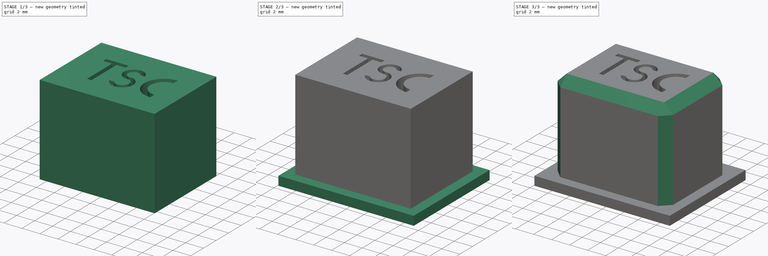
[diagram: build sequence overview — one tinted view per stage of 3, left to right]
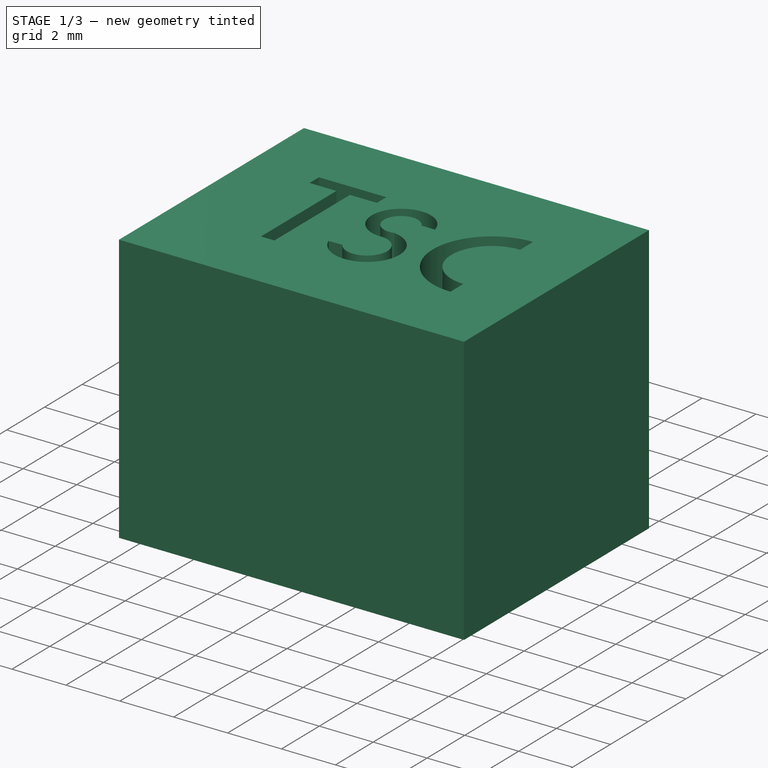
[diagram: stage 1 of 3 — iso view after this stage's code; geometry added in this stage tinted green]
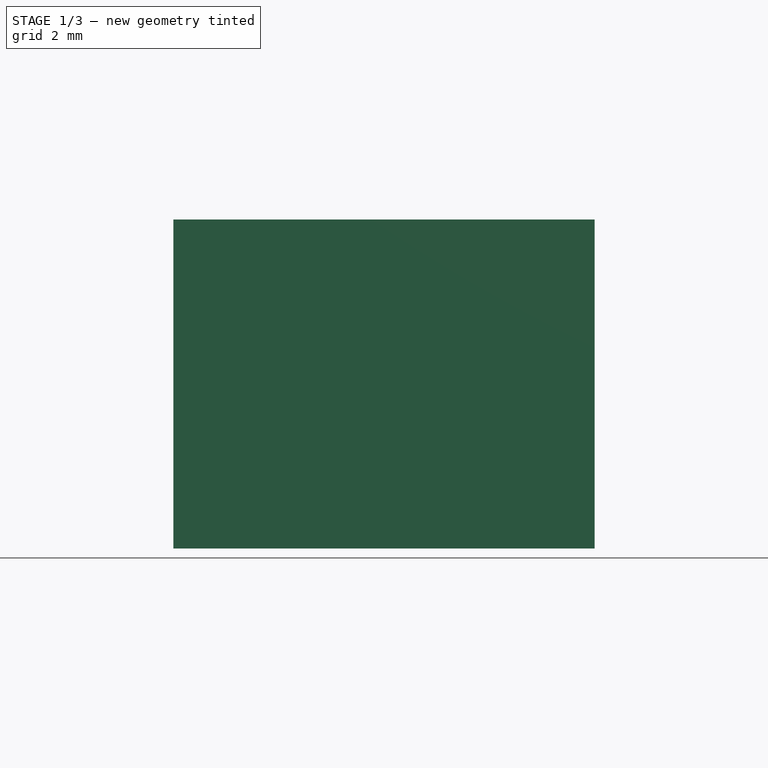
[diagram: stage 1 of 3 — front view after this stage's code; geometry added in this stage tinted green]
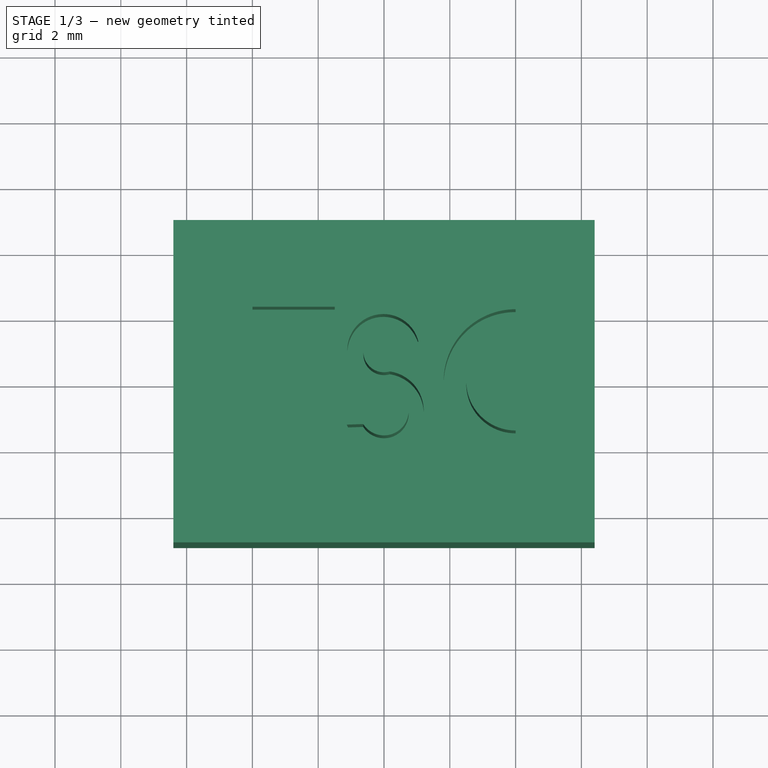
[diagram: stage 1 of 3 — top view after this stage's code; geometry added in this stage tinted green]
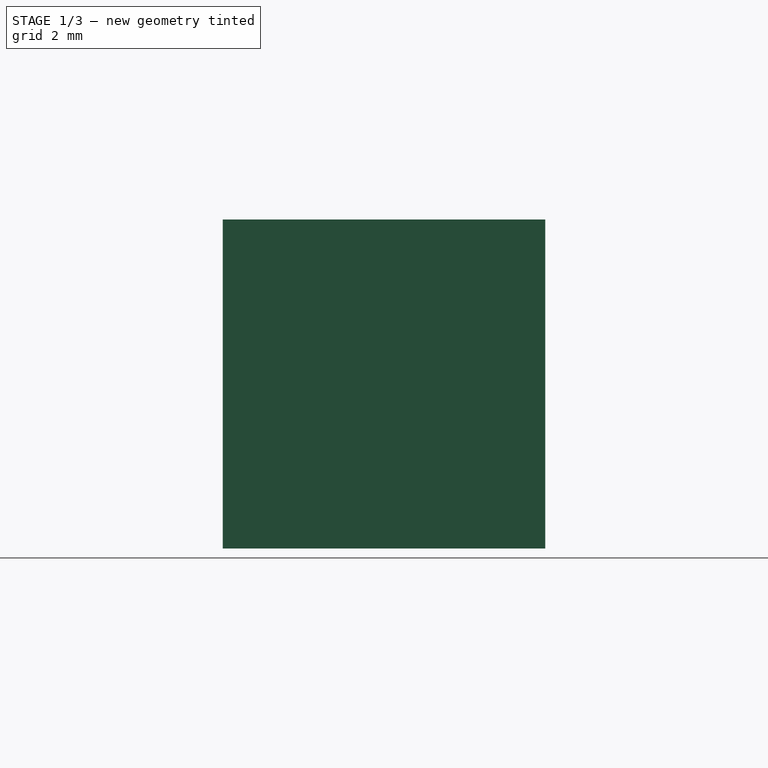
[diagram: stage 1 of 3 — right view after this stage's code; geometry added in this stage tinted green]
FCSTD DOCUMENT  (FreeCAD 0.21R33771 (Git))
Label: bezel-3-button-iteration-TSc
License: All rights reserved
LicenseURL: http://en.wikipedia.org/wiki/All_rights_reserved
objects: Sketcher::SketchObject×4, PartDesign::Pad×2, PartDesign::Pocket×2, PartDesign::Chamfer×1, PartDesign::Body×1, App::Part×1
note: 15 computed .brp shape members not serialized (recipe doc carries the construction recipe); baked Part::Feature solids carry a one-line shape summary decoded from their .brp

FEATURE [Sketcher::SketchObject] Sketch
  FullyConstrained = true
  MapMode = 5
  Support = -> [XY_Plane001]
  sketch-geometry (4):
    g0: LineSegment StartX=-6.4 StartY=4.9 StartZ=0 EndX=6.4 EndY=4.9 EndZ=0
    g1: LineSegment StartX=6.4 StartY=4.9 StartZ=0 EndX=6.4 EndY=-4.9 EndZ=0
    g2: LineSegment StartX=6.4 StartY=-4.9 StartZ=0 EndX=-6.4 EndY=-4.9 EndZ=0
    g3: LineSegment StartX=-6.4 StartY=-4.9 StartZ=0 EndX=-6.4 EndY=4.9 EndZ=0
  constraints (11):
    c: Coincident(g0,g1)
    c: Coincident(g1,g2)
    c: Coincident(g2,g3)
    c: Coincident(g3,g0)
    c: Horizontal(g0)
    c: Horizontal(g2)
    c: Vertical(g1)
    c: Vertical(g3)
    c: DistanceX(g2,g2) = 12.8
    c: DistanceY(g1,g1) = 9.8
    c: Symmetric(g1,g0,g-1)
FEATURE [PartDesign::Pad] Pad
  Direction = (0,0,1)
  Length = 10
  Length2 = 10
  Profile = -> Sketch
  ReferenceAxis = -> Sketch [N_Axis]
  Type = 0
FEATURE [Sketcher::SketchObject] Sketch001
  FullyConstrained = false
  MapMode = 5
  Placement = pos=(0,0,10) rot=(0,0,1;0rad)
  Support = -> [Pad]
  sketch-geometry (26):
    g0: LineSegment StartX=0 StartY=0 StartZ=0 EndX=-4 EndY=0 EndZ=0
    g1: LineSegment StartX=-4 StartY=0 StartZ=0 EndX=-4 EndY=3 EndZ=0
    g2: LineSegment StartX=-4 StartY=3 StartZ=0 EndX=0 EndY=3 EndZ=0
    g3: LineSegment StartX=0 StartY=3 StartZ=0 EndX=0 EndY=0 EndZ=0
    g4: LineSegment StartX=0 StartY=0 StartZ=0 EndX=4 EndY=0 EndZ=0
    g5: LineSegment StartX=4 StartY=0 StartZ=0 EndX=4 EndY=-3 EndZ=0
    g6: LineSegment StartX=4 StartY=-3 StartZ=0 EndX=0 EndY=-3 EndZ=0
    g7: LineSegment StartX=0 StartY=-3 StartZ=0 EndX=0 EndY=0 EndZ=0
    g8: LineSegment StartX=-3.99861 StartY=2.2628 StartZ=0 EndX=-3.99861 EndY=1.7628 EndZ=0
    g9: LineSegment StartX=-3.99861 StartY=1.7628 StartZ=0 EndX=-2.99861 EndY=1.7628 EndZ=0
    g10: LineSegment StartX=-2.99861 StartY=1.7628 StartZ=0 EndX=-2.99861 EndY=-2.2372 EndZ=0
    g11: LineSegment StartX=-2.99861 StartY=-2.2372 StartZ=0 EndX=-2.49861 EndY=-2.2372 EndZ=0
    g12: LineSegment StartX=-2.49861 StartY=-2.2372 StartZ=0 EndX=-2.49861 EndY=1.7628 EndZ=0
    g13: LineSegment StartX=-2.49861 StartY=1.7628 StartZ=0 EndX=-1.49861 EndY=1.7628 EndZ=0
    g14: LineSegment StartX=-1.49861 StartY=1.7628 StartZ=0 EndX=-1.49861 EndY=2.2628 EndZ=0
    g15: LineSegment StartX=-1.49861 StartY=2.2628 StartZ=0 EndX=-3.99861 EndY=2.2628 EndZ=0
    g16: ArcOfCircle CenterX=-0.018047 CenterY=0.944138 CenterZ=0 NormalX=0 NormalY=0 NormalZ=1 AngleXU=0 Radius=1.09523 StartAngle=0.233181 EndAngle=4.68296
    g17: ArcOfCircle CenterX=0 CenterY=-0.898928 CenterZ=0 NormalX=0 NormalY=0 NormalZ=1 AngleXU=0 Radius=0.75 StartAngle=3.7141 EndAngle=7.92106
    g18: ArcOfCircle CenterX=0 CenterY=-0.898928 CenterZ=0 NormalX=0 NormalY=0 NormalZ=1 AngleXU=0 Radius=1.20712 StartAngle=3.50002 EndAngle=7.70775
    g19: ArcOfCircle CenterX=0 CenterY=0.897035 CenterZ=0 NormalX=0 NormalY=0 NormalZ=1 AngleXU=0 Radius=0.62691 StartAngle=0.508669 EndAngle=4.99678
    g20: LineSegment StartX=0.547539 StartY=1.20235 StartZ=0 EndX=1.04754 EndY=1.19722 EndZ=0
    g21: LineSegment StartX=-1.13041 StartY=-1.32239 StartZ=0 EndX=-0.630407 EndY=-1.30524 EndZ=0
    g22: ArcOfCircle CenterX=4 CenterY=0 CenterZ=0 NormalX=0 NormalY=0 NormalZ=1 AngleXU=0 Radius=2.18602 StartAngle=1.5708 EndAngle=4.71239
    g23: ArcOfCircle CenterX=4 CenterY=0 CenterZ=0 NormalX=0 NormalY=0 NormalZ=1 AngleXU=0 Radius=1.5 StartAngle=1.5708 EndAngle=4.71239
    g24: LineSegment StartX=4 StartY=2.18602 StartZ=0 EndX=4 EndY=1.5 EndZ=0
    g25: LineSegment StartX=4 StartY=-1.5 StartZ=0 EndX=4 EndY=-2.18602 EndZ=0
  constraints (66):
    c: Coincident(g0,g1)
    c: Coincident(g1,g2)
    c: Coincident(g2,g3)
    c: Coincident(g3,g0)
    c: Horizontal(g0)
    c: Horizontal(g2)
    c: Vertical(g1)
    c: Vertical(g3)
    c: Coincident(g0,g-1)
    c: Coincident(g4,g5)
    c: Coincident(g5,g6)
    c: Coincident(g6,g7)
    c: Coincident(g7,g4)
    c: Horizontal(g4)
    c: Horizontal(g6)
    c: Vertical(g5)
    c: Vertical(g7)
    c: Coincident(g4,g0)
    c: DistanceX(g6,g6) = 4
    c: DistanceX(g2,g2) = 4
    c: DistanceY(g1,g1) = 3
    c: DistanceY(g5,g5) = 3
    c: Vertical(g8)
    c: Coincident(g8,g9)
    c: Horizontal(g9)
    c: Coincident(g9,g10)
    c: Vertical(g10)
    c: Coincident(g10,g11)
    c: Horizontal(g11)
    c: Coincident(g11,g12)
    c: Vertical(g12)
    c: Coincident(g12,g13)
    c: Horizontal(g13)
    c: Coincident(g13,g14)
    c: Coincident(g14,g15)
    c: Coincident(g15,g8)
    c: Horizontal(g15)
    c: DistanceY(g14,g14) = 0.5
    c: Vertical(g14)
    c: DistanceY(g8,g8) = 0.5
    c: DistanceX(g9,g9) = 1
    c: DistanceX(g13,g13) = 1
    c: DistanceX(g11,g11) = 0.5
    c: DistanceY(g12,g12) = 4
    c: PointOnObject(g17,g7)
    c: Coincident(g17,g16)
    c: Coincident(g18,g17)
    c: PointOnObject(g19,g3)
    c: Coincident(g19,g18)
    c: Coincident(g20,g19)
    c: Coincident(g20,g16)
    c: DistanceX(g20,g20) = 0.5
    c: Coincident(g21,g18)
    c: Coincident(g21,g17)
    c: DistanceX(g21,g21) = 0.5
    c: Distance(g16,g18) = 0.5
    c: Distance(g17,g17) = 0.75
    c: Coincident(g22,g4)
    c: PointOnObject(g22,g5)
    c: Coincident(g23,g22)
    c: PointOnObject(g23,g5)
    c: Coincident(g24,g22)
    c: Coincident(g24,g23)
    c: Vertical(g24)
    c: Coincident(g25,g23)
    c: Coincident(g25,g22)
FEATURE [PartDesign::Pocket] Pocket
  BaseFeature = -> Pad
  Direction = (0,0,-1)
  Length = 5
  Length2 = 5
  Profile = -> Sketch001
  ReferenceAxis = -> Sketch001 [N_Axis]
  Type = 0
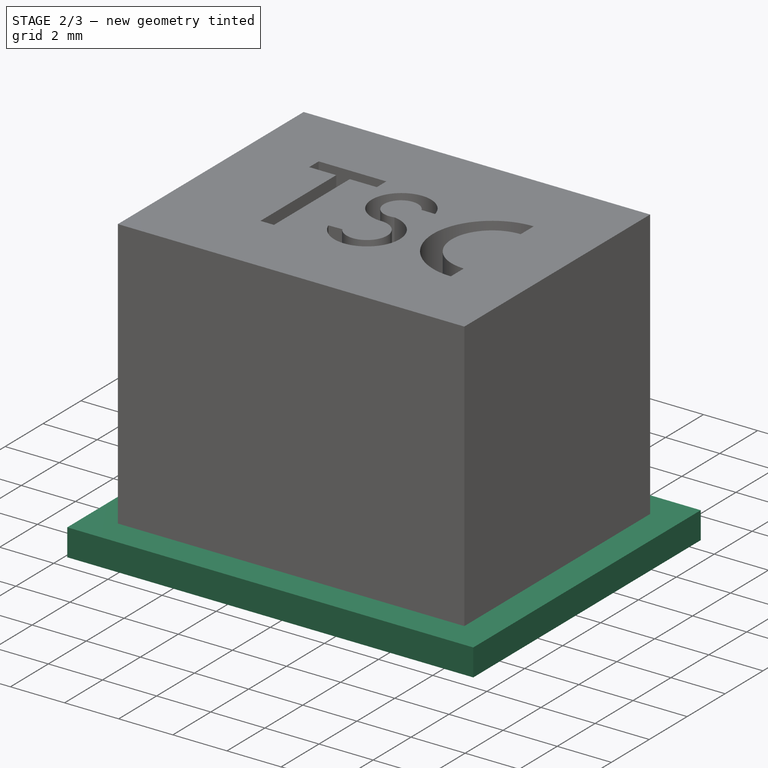
[diagram: stage 2 of 3 — iso view after this stage's code; geometry added in this stage tinted green]
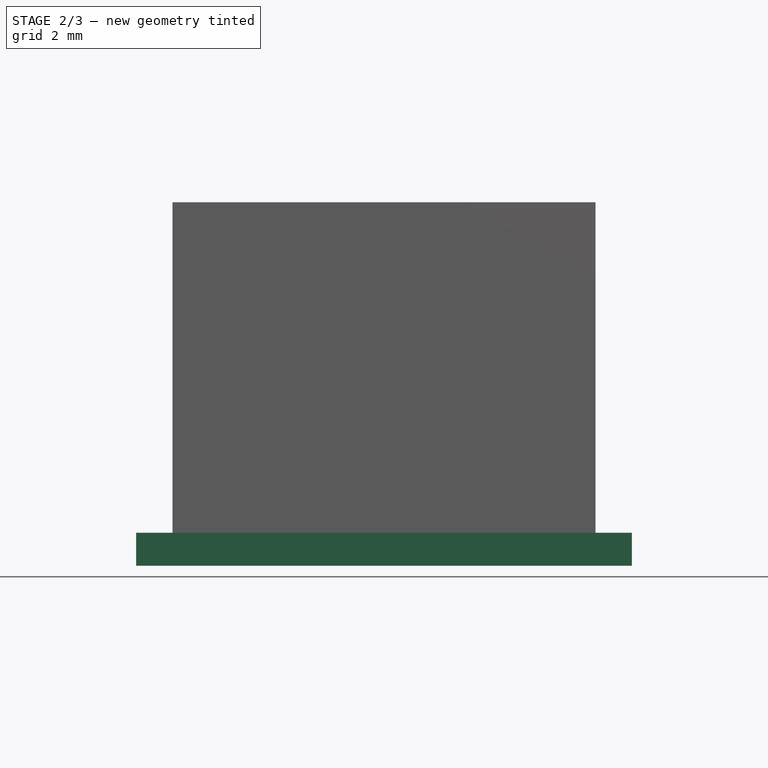
[diagram: stage 2 of 3 — front view after this stage's code; geometry added in this stage tinted green]
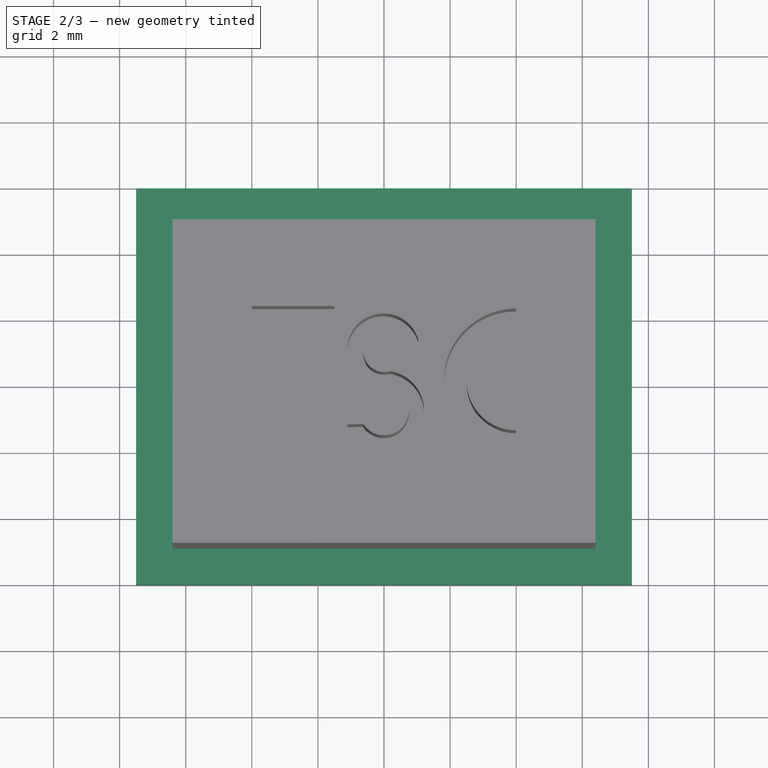
[diagram: stage 2 of 3 — top view after this stage's code; geometry added in this stage tinted green]
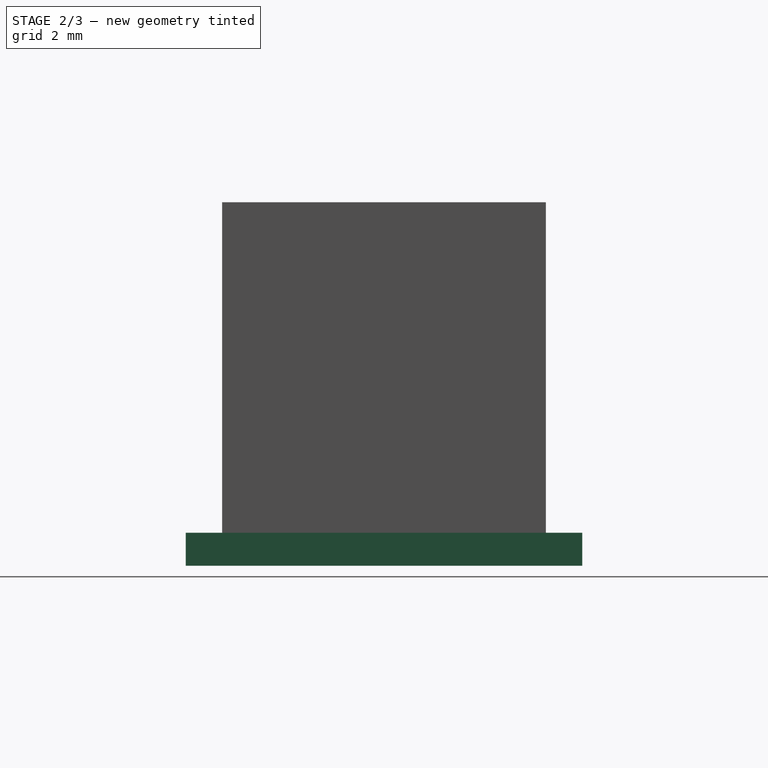
[diagram: stage 2 of 3 — right view after this stage's code; geometry added in this stage tinted green]
FEATURE [Sketcher::SketchObject] Sketch002
  FullyConstrained = true
  MapMode = 5
  Placement = pos=(0,0,0) rot=(1,0,0;3.14159rad)
  Support = -> [Pocket]
  sketch-geometry (4):
    g0: LineSegment StartX=-7.5 StartY=6 StartZ=0 EndX=7.5 EndY=6 EndZ=0
    g1: LineSegment StartX=7.5 StartY=6 StartZ=0 EndX=7.5 EndY=-6 EndZ=0
    g2: LineSegment StartX=7.5 StartY=-6 StartZ=0 EndX=-7.5 EndY=-6 EndZ=0
    g3: LineSegment StartX=-7.5 StartY=-6 StartZ=0 EndX=-7.5 EndY=6 EndZ=0
  constraints (11):
    c: Coincident(g0,g1)
    c: Coincident(g1,g2)
    c: Coincident(g2,g3)
    c: Coincident(g3,g0)
    c: Horizontal(g0)
    c: Horizontal(g2)
    c: Vertical(g1)
    c: Vertical(g3)
    c: DistanceX(g2,g2) = 15
    c: DistanceY(g1,g1) = 12
    c: Symmetric(g1,g0,g-1)
FEATURE [PartDesign::Pad] Pad001
  BaseFeature = -> Pocket
  Direction = (0,0,-1)
  Length = 1
  Length2 = 10
  Profile = -> Sketch002
  ReferenceAxis = -> Sketch002 [N_Axis]
  Type = 0
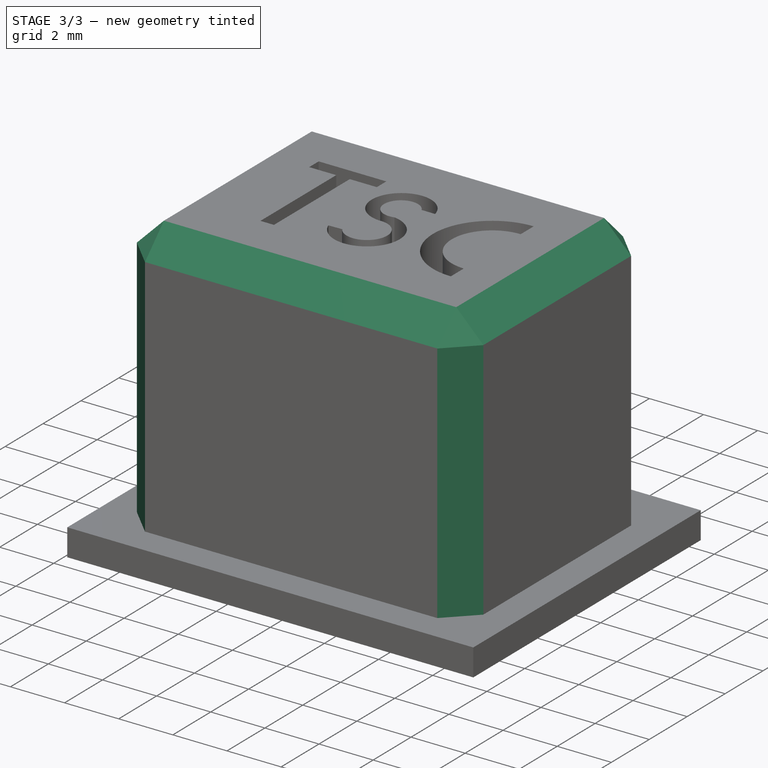
[diagram: stage 3 of 3 — iso view after this stage's code; geometry added in this stage tinted green]
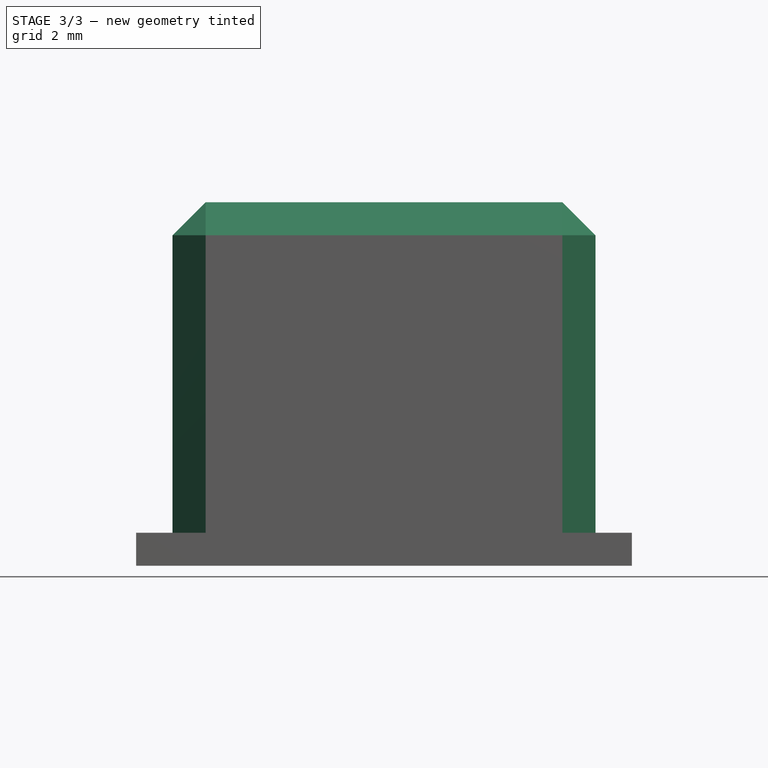
[diagram: stage 3 of 3 — front view after this stage's code; geometry added in this stage tinted green]
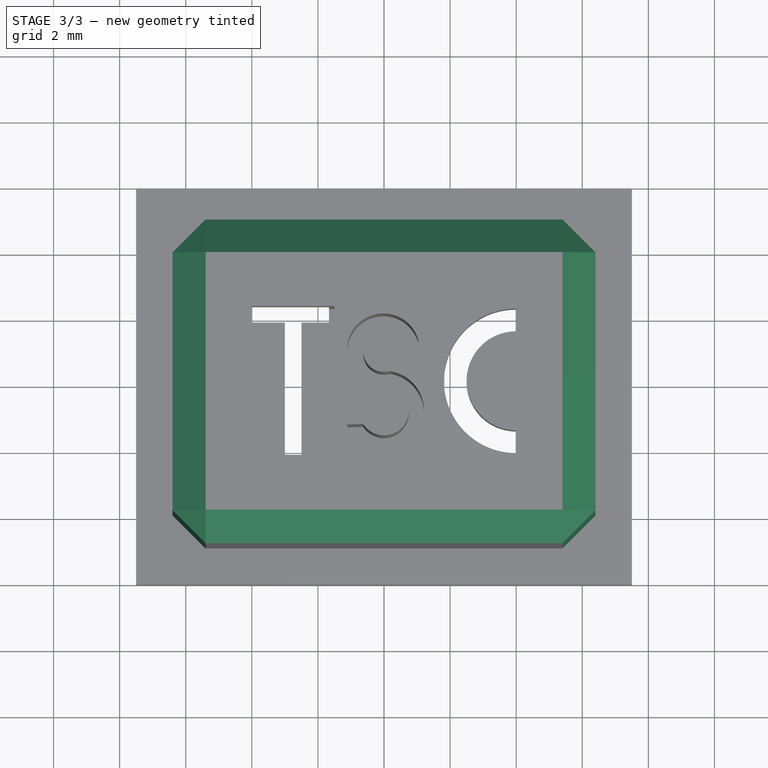
[diagram: stage 3 of 3 — top view after this stage's code; geometry added in this stage tinted green]
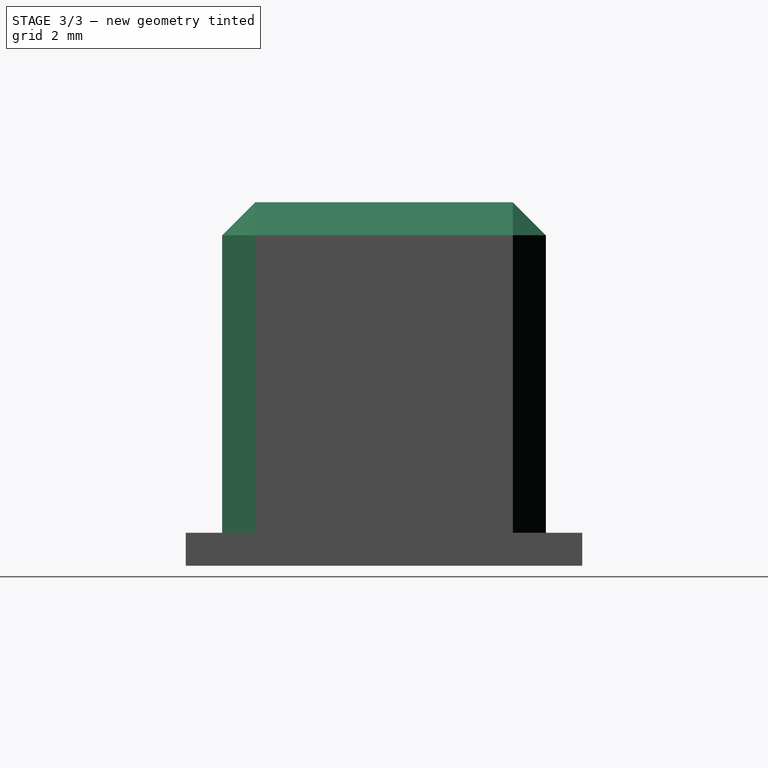
[diagram: stage 3 of 3 — right view after this stage's code; geometry added in this stage tinted green]
FEATURE [PartDesign::Chamfer] Chamfer
  Angle = 45
  Base = -> Pad001 [Edge20,Edge17,Edge21,Edge19,Edge24,Edge23,Edge22,Edge18]
  BaseFeature = -> Pad001
  ChamferType = 0
  FlipDirection = false
  Size = 1
  Size2 = 1
  SupportTransform = false
  UseAllEdges = false
FEATURE [Sketcher::SketchObject] Sketch003
  FullyConstrained = true
  MapMode = 5
  Placement = pos=(0,0,-1) rot=(1,0,0;3.14159rad)
  Support = -> [Chamfer]
  sketch-geometry (8):
    g0: LineSegment StartX=-4.6628 StartY=3 StartZ=0 EndX=-1.6628 EndY=3 EndZ=0
    g1: LineSegment StartX=-1.6628 StartY=3 StartZ=0 EndX=-1.6628 EndY=-3 EndZ=0
    g2: LineSegment StartX=-1.6628 StartY=-3 StartZ=0 EndX=-4.6628 EndY=-3 EndZ=0
    g3: LineSegment StartX=-4.6628 StartY=-3 StartZ=0 EndX=-4.6628 EndY=3 EndZ=0
    g4: LineSegment StartX=1.82211 StartY=-3 StartZ=0 EndX=4.82211 EndY=-3 EndZ=0
    g5: LineSegment StartX=4.82211 StartY=-3 StartZ=0 EndX=4.82211 EndY=3 EndZ=0
    g6: LineSegment StartX=4.82211 StartY=3 StartZ=0 EndX=1.82211 EndY=3 EndZ=0
    g7: LineSegment StartX=1.82211 StartY=3 StartZ=0 EndX=1.82211 EndY=-3 EndZ=0
  constraints (24):
    c: Coincident(g0,g1)
    c: Coincident(g1,g2)
    c: Coincident(g2,g3)
    c: Coincident(g3,g0)
    c: Horizontal(g0)
    c: Horizontal(g2)
    c: Vertical(g1)
    c: Vertical(g3)
    c: Coincident(g4,g5)
    c: Coincident(g5,g6)
    c: Coincident(g6,g7)
    c: Coincident(g7,g4)
    c: Horizontal(g4)
    c: Horizontal(g6)
    c: Vertical(g5)
    c: Vertical(g7)
    c: DistanceY(g-1,g1) = -3
    c: DistanceY(g-1,g0) = 3
    c: DistanceX(g0,g0) = 3
    c: Distance(g-1,g1) = 3.43
    c: DistanceY(g7,g7) = 6
    c: DistanceY(g-1,g4) = -3
    c: Distance(g-1,g4) = 3.51
    c: DistanceX(g6,g6) = 3
FEATURE [PartDesign::Pocket] Pocket001
  BaseFeature = -> Chamfer
  Direction = (0,0,1)
  Length = 9
  Length2 = 5
  Profile = -> Sketch003
  ReferenceAxis = -> Sketch003 [N_Axis]
  Type = 0
FEATURE [PartDesign::Body] Body
  Group = -> [Sketch,Pad,Sketch001,Pocket,Sketch002,Pad001,Chamfer,Sketch003,Pocket001]
  Origin = -> Origin001
  Tip = -> Pocket001
FEATURE [App::Part] Part
  Group = -> [Body]
  Origin = -> Origin
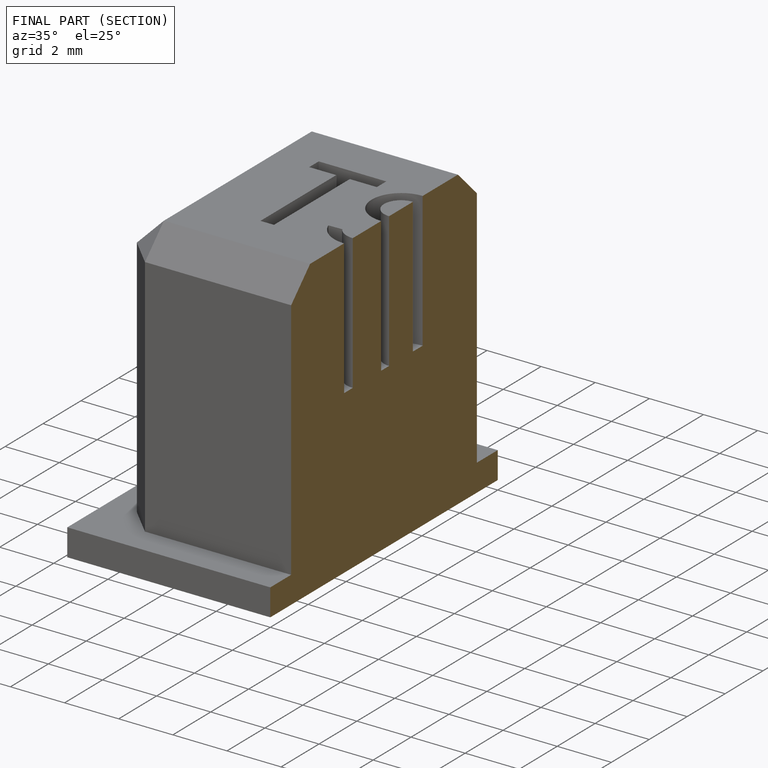
[diagram: finished part — half-section view (interior)]
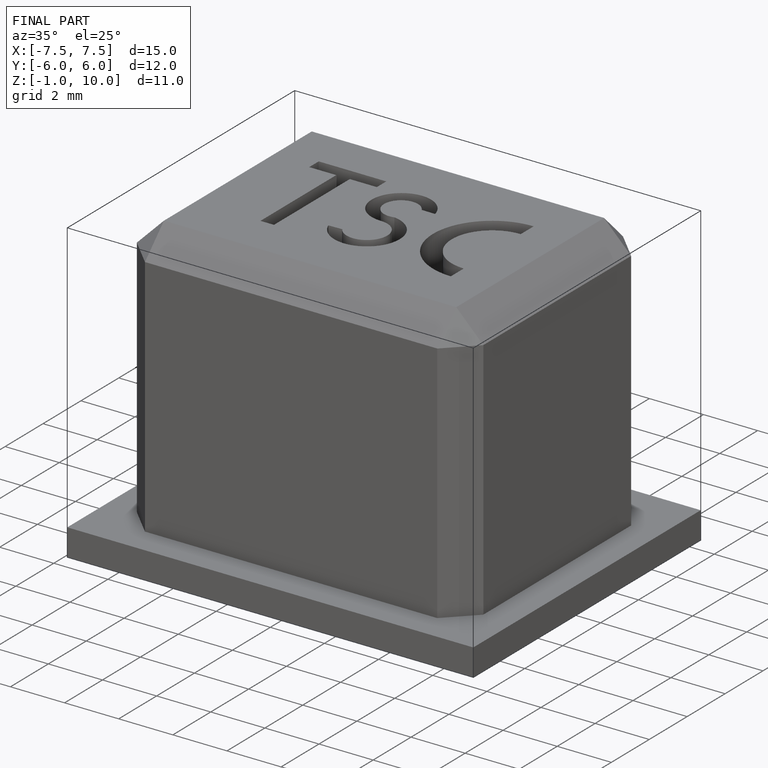
[diagram: finished part — iso view with bounding-box wireframe]
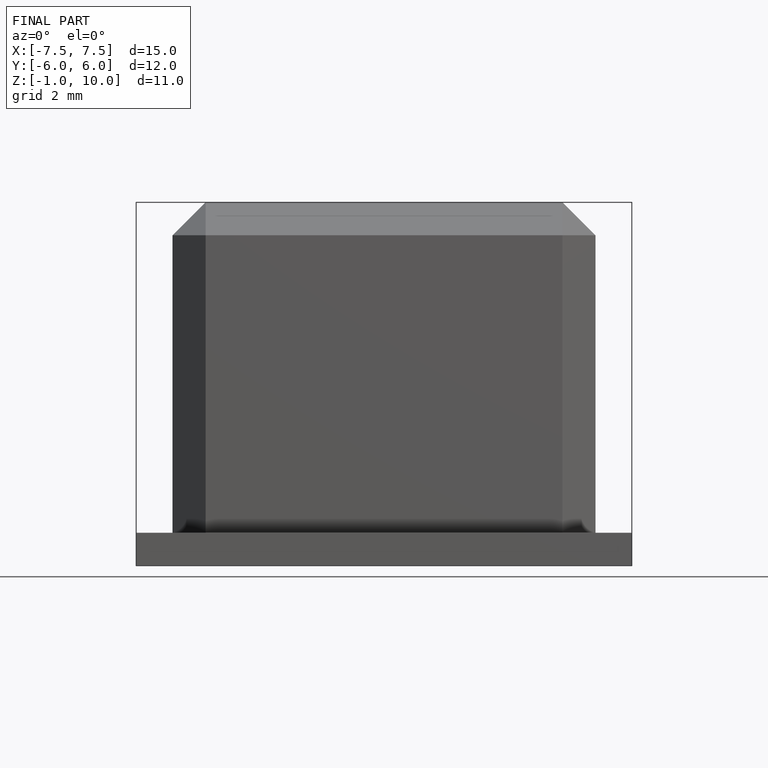
[diagram: finished part — front view with bounding-box wireframe]
